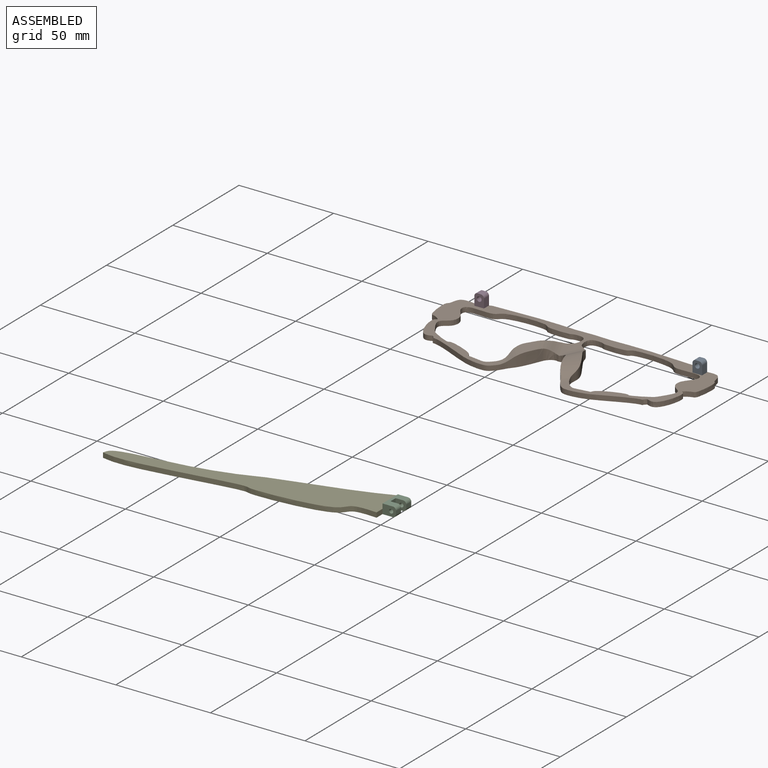
[diagram: assembled view]
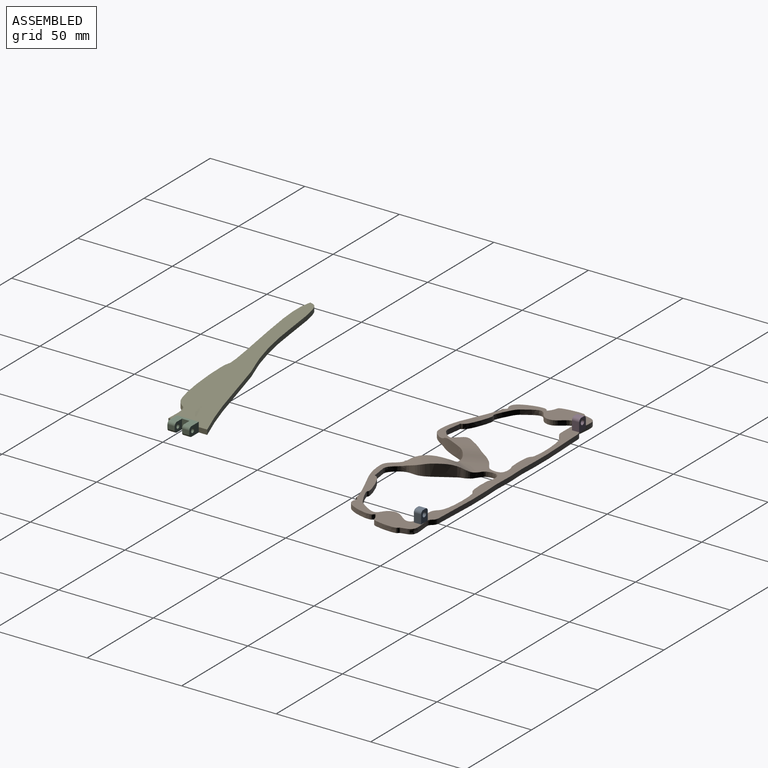
[diagram: assembled view, second angle]
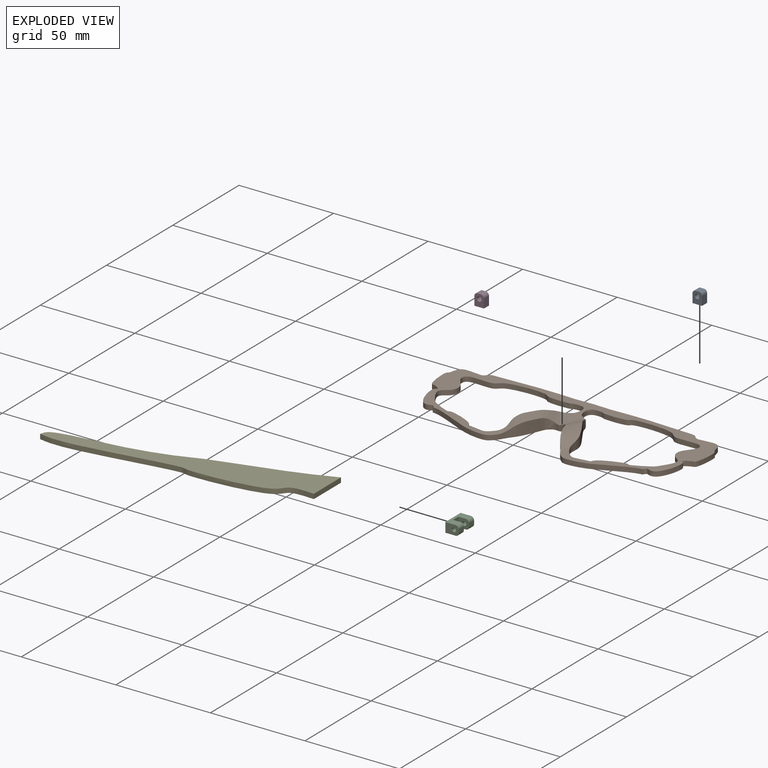
[diagram: exploded view]
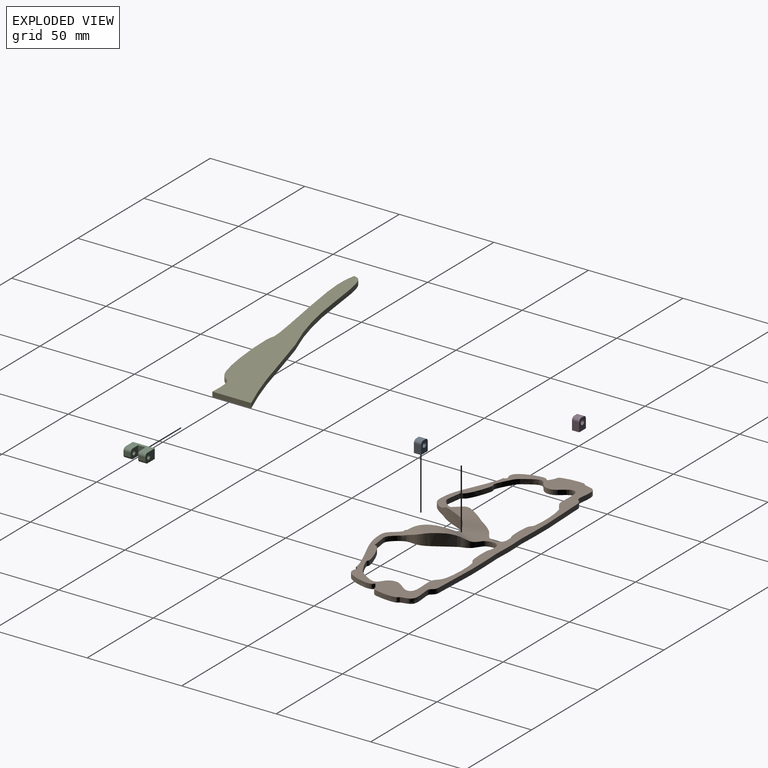
[diagram: exploded view, second angle]
ASSEMBLY  parts=5 mates=3
PART A: 9 faces, bbox 5.1x6.4x3.8 mm
  f0: plane 3.81x1.78mm, normal (0,1,0), area 6.8mm2, adj f5,f6,f7,f8
  f1: plane 4.7x3.81mm, normal (-1,0,0), area 17.9mm2, adj f2,f5,f6,f7
  f2: plane 5.08x3.81mm, normal (0,-1,0), area 19.4mm2, adj f1,f4,f5,f6
  f3: cylinder r=1.27mm len=3.81mm, axis (0,0,-1), area 30.4mm2, adj f5,f6
  f4: plane 4.7x3.81mm, normal (1,0,0), area 17.9mm2, adj f2,f5,f6,f8
  f5: plane 6.35x5.08mm, normal (0,0,1), area 26mm2, adj f0,f1,f2,f3,f4,f7,f8
  f6: plane 6.35x5.08mm, normal (0,0,-1), area 26mm2, adj f0,f1,f2,f3,f4,f7,f8
  f7: cylinder r=1.65mm len=3.81mm, axis (0,0,-1), area 9.9mm2, adj f0,f1,f5,f6
  f8: cylinder r=1.65mm len=3.81mm, axis (0,0,-1), area 9.9mm2, adj f0,f4,f5,f6
PART B: 24 faces, bbox 144x53.3x6.4 mm
  f0: extruded ~61.94x46.62mm, area 382.3mm2, adj f8,f9,f10,f16,f17,f20,f21
  f1: extruded ~5.5x5.3mm, area 25.5mm2, adj f2,f9,f11,f17,f21
  f2: extruded ~5.31x5.3mm, area 24.1mm2, adj f1,f9,f13,f17,f18,f23
  f3: extruded ~61.94x46.62mm, area 387.7mm2, adj f8,f9,f14,f18,f19,f22,f23
  f4: extruded ~45.23x12.02mm, area 145.4mm2, adj f5,f8,f9,f13,f19,f22
  f5: extruded ~71.23x41.72mm, area 293.2mm2, adj f4,f6,f8,f9
  f6: extruded ~71.23x41.72mm, area 293.2mm2, adj f5,f7,f8,f9
  f7: extruded ~45.23x12.02mm, area 144.9mm2, adj f6,f8,f9,f11,f16,f20
  f8: plane 143.96x53.3mm, normal (0,0,1), area 1450.5mm2, adj f0,f3,f4,f5,f6,f7,f16,f17
  f9: plane 143.96x53.3mm, normal (0,0,-1), area 1958.7mm2, adj f0,f1,f2,f3,f4,f5,f6,f7
  f10: extruded ~14.15x7.89mm, area 98.9mm2, adj f0,f9,f12,f20,f21
  f11: extruded ~12.95x6.35mm, area 86.8mm2, adj f1,f7,f9,f12,f20,f21
  f12: plane 11.44x7.16mm, normal (0,0,1), area 35.2mm2, adj f10,f11,f20,f21
  f13: extruded ~12.95x6.35mm, area 85.7mm2, adj f2,f4,f9,f15,f22,f23
  f14: extruded ~14.15x7.89mm, area 97.6mm2, adj f3,f9,f15,f22,f23
  f15: plane 9.27x5.97mm, normal (0,0,1), area 14.9mm2, adj f13,f14,f22,f23
  f16: cylinder r=11.65mm len=10.25mm, axis (0.65,-0.76,0), area 29.9mm2, adj f0,f7,f8,f20
  f17: cylinder r=11.65mm len=15mm, axis (0.45,-0.89,0), area 73.5mm2, adj f0,f1,f2,f8,f18,f21
  f18: cylinder r=10.42mm len=14.34mm, axis (-0.45,-0.89,0), area 62.7mm2, adj f2,f3,f8,f17,f23
  f19: cylinder r=10.42mm len=9.34mm, axis (-0.65,-0.76,0), area 25.6mm2, adj f3,f4,f8,f22
  f20: cylinder r=13.6mm len=13.25mm, axis (0.65,-0.76,0), area 62.5mm2, adj f0,f7,f10,f11,f12,f16
  f21: cylinder r=13.6mm len=16.52mm, axis (0.45,-0.89,0), area 69.4mm2, adj f0,f1,f10,f11,f12,f17
  f22: cylinder r=16.75mm len=14.47mm, axis (-0.65,-0.76,0), area 73.6mm2, adj f3,f4,f13,f14,f15,f19
  f23: cylinder r=16.75mm len=18.12mm, axis (-0.45,-0.89,0), area 83.3mm2, adj f2,f3,f13,f14,f15,f18
PART C: 17 faces, bbox 5.1x7.1x11.6 mm
  f0: plane 5.59x5.08mm, normal (0,0,-1), area 23.6mm2, adj f1,f2,f3,f4,f6,f7,f8
  f1: plane 11.56x5.46mm, normal (1,0,0), area 47.6mm2, adj f0,f2,f5,f8,f9,f11,f13,f16
  f2: cylinder r=1.65mm len=3.81mm, axis (0,0,-1), area 9.9mm2, adj f0,f1,f3,f5
  f3: plane 3.81x1.78mm, normal (0,1,0), area 6.8mm2, adj f0,f2,f4,f5
  f4: cylinder r=1.65mm len=3.81mm, axis (0,0,-1), area 9.9mm2, adj f0,f3,f5,f7
  f5: plane 7.11x5.08mm, normal (0,0,1), area 31.4mm2, adj f1,f2,f3,f4,f6,f7,f16
  f6: cylinder r=1.07mm len=3.81mm, axis (0,0,-1), area 25.5mm2, adj f0,f5
  f7: plane 11.56x5.46mm, normal (-1,0,0), area 47.6mm2, adj f0,f4,f5,f8,f9,f11,f12,f16
  f8: plane 5.08x3.94mm, normal (0,1,0), area 20mm2, adj f0,f1,f7,f9
  f9: plane 5.6x5.09mm, normal (0,0,1), area 23.3mm2, adj f1,f7,f8,f10,f12,f13,f14,f15
  f10: plane 3.81x1.78mm, normal (0,1,0), area 6.8mm2, adj f9,f11,f12,f13
  f11: plane 7.11x5.08mm, normal (0,0,-1), area 31.4mm2, adj f1,f7,f10,f12,f13,f14,f16
  f12: cylinder r=1.65mm len=3.81mm, axis (0,0,-1), area 9.9mm2, adj f7,f9,f10,f11
  f13: cylinder r=1.65mm len=3.81mm, axis (0,0,-1), area 9.9mm2, adj f1,f9,f10,f11
  f14: cylinder r=1.07mm len=3.81mm, axis (0,0,-1), area 25.5mm2, adj f9,f11,f15
  f15: plane 1.83x0.39mm, normal (0,-0.02,1), area 0.3mm2, adj f9,f14
  f16: plane 11.56x5.08mm, normal (0,-1,0), area 58.7mm2, adj f1,f5,f7,f11
PART D: same geometry as A
PART E: 5 faces, bbox 132.4x40.9x2.5 mm
  f0: plane 20.51x2.54mm, normal (1,0,0), area 52.1mm2, adj f1,f2,f3,f4
  f1: extruded ~132.37x38.14mm, area 354.5mm2, adj f0,f2,f3,f4
  f2: extruded ~132.37x18.81mm, area 344.9mm2, adj f0,f1,f3,f4
  f3: plane 132.37x40.9mm, normal (0,0,1), area 1643.3mm2, adj f0,f1,f2
  f4: plane 132.37x40.9mm, normal (0,0,-1), area 1643.3mm2, adj f0,f1,f2
PLACE A rot(axis=(0,0.71,0.71),180deg) t=(-120.1,35.4,32.8)mm
PLACE B t=(-108.68,-37.89,61.89)mm
PLACE C rot(axis=(-0.58,-0.58,-0.58),120deg) t=(-160.21,-124.22,80.49)mm
PLACE D rot(axis=(1,0,0),90deg) t=(-151.35,41.12,32.8)mm
PLACE E t=(-81.43,-29.33,45.99)mm
MATE fastened C.f16 <-> E.f0  axis (-1,0,0) through (-129.34,-122.31,45.99)mm
MATE fastened A.f2 <-> B.f8  axis (0,0,-1) through (-77.39,39.21,64.43)mm
MATE fastened D.f2 <-> B.f8  axis (0,0,-1) through (-196.6,39.21,64.43)mm
